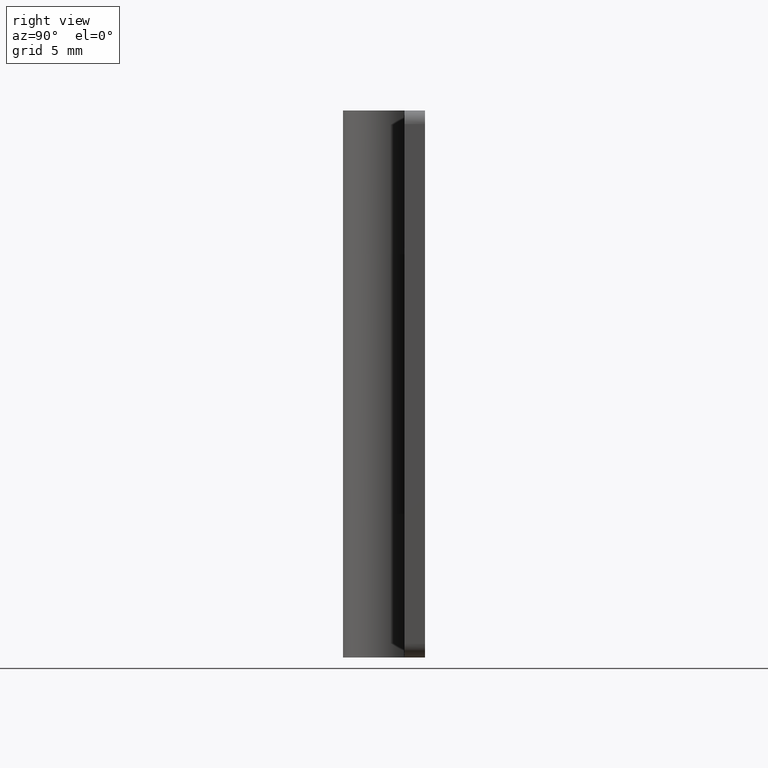
[diagram: clean part render]
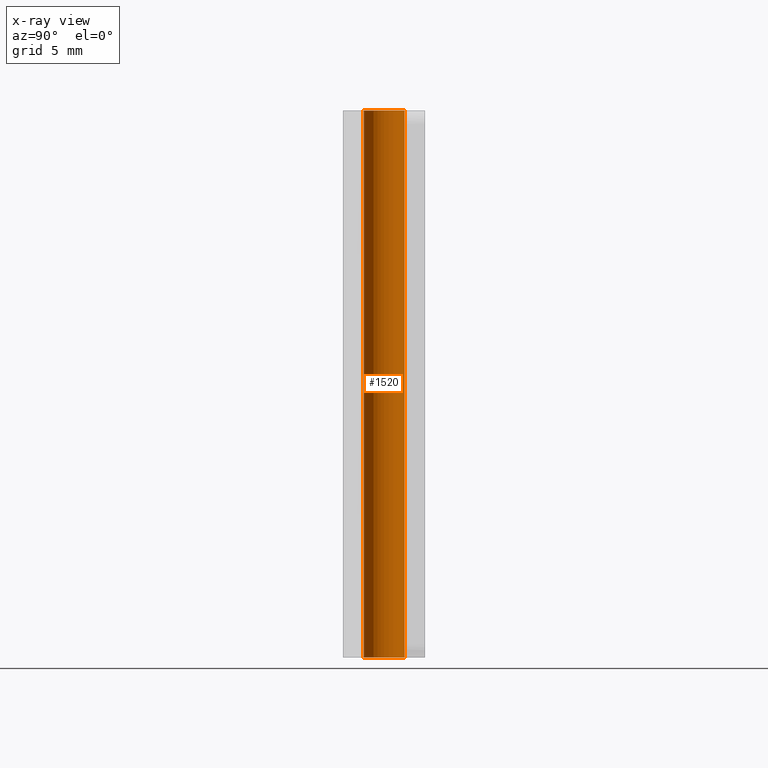
[diagram: x-ray — body ghosted, one internal face saturated and labeled with its STEP entity id]
A machine part, right view, then the same camera in x-ray: the body is ghosted and one INTERNAL B-rep face — a face not visible from any outside direction — is saturated and labeled: STEP entity #1520.
In plain terms, the highlighted face is a freeform B-spline surface patch.
Its self-contained STEP definition (entity closure, byte-faithful):
#1418=CARTESIAN_POINT('',(0.177051351985138,-1.489514289545500,41.000000000000014));
#1419=CARTESIAN_POINT('',(0.134422092956966,-1.494581423172908,41.000000000000014));
#1420=CARTESIAN_POINT('',(0.091572809302285,-1.497202197632800,41.000000000000007));
#1421=CARTESIAN_POINT('',(-1.405629388330515,-1.588775006935085,41.000000000000014));
#1422=CARTESIAN_POINT('',(-1.497202197632800,-0.091572809302285,41.000000000000007));
#1423=CARTESIAN_POINT('',(-1.588775006935085,1.405629388330515,41.000000000000014));
#1424=CARTESIAN_POINT('',(-0.091572809302285,1.497202197632800,41.000000000000007));
#1425=CARTESIAN_POINT('',(0.177051351985138,-1.489514289545500,-1.025000000000006));
#1426=CARTESIAN_POINT('',(0.134422092956966,-1.494581423172908,-1.025000000000006));
#1427=CARTESIAN_POINT('',(0.091572809302285,-1.497202197632800,-1.025000000000006));
#1428=CARTESIAN_POINT('',(-1.405629388330515,-1.588775006935085,-1.025000000000006));
#1429=CARTESIAN_POINT('',(-1.497202197632800,-0.091572809302285,-1.025000000000006));
#1430=CARTESIAN_POINT('',(-1.588775006935085,1.405629388330515,-1.025000000000006));
#1431=CARTESIAN_POINT('',(-0.091572809302285,1.497202197632800,-1.025000000000006));
#1439=(BOUNDED_SURFACE()B_SPLINE_SURFACE(2,1,((#1418,#1425),(#1419,#1426),(#1420,#1427),(#1421,#1428),(#1422,#1429),(#1423,#1430),(#1424,#1431)),.UNSPECIFIED.,.F.,.F.,.U.)B_SPLINE_SURFACE_WITH_KNOTS((3,2,2,3),(2,2),(3.078760800517997,3.141592653589793,4.712388980384690,6.283185307179586),(0.0,42.025000000000013),.UNSPECIFIED.)GEOMETRIC_REPRESENTATION_ITEM()RATIONAL_B_SPLINE_SURFACE(((0.977505800795127,0.977505800795127),(0.988284271247462,0.988284271247462),(1.0,1.0),(0.707106781186548,0.707106781186548),(1.0,1.0),(0.707106781186548,0.707106781186548),(1.0,1.0)))REPRESENTATION_ITEM('')SURFACE());
#1440=CARTESIAN_POINT('',(0.177048581627317,-1.489514618839295,-4.543085E-015));
#1441=VERTEX_POINT('',#1440);
#1442=CARTESIAN_POINT('',(-1.500000000000000,0.0,0.0));
#1443=VERTEX_POINT('',#1442);
#1444=CARTESIAN_POINT('',(0.177048581627317,-1.489514618839296,-4.543085E-015));
#1445=CARTESIAN_POINT('',(0.088834779655407,-1.500000000000000,0.0));
#1446=CARTESIAN_POINT('',(0.0,-1.500000000000000,0.0));
#1447=CARTESIAN_POINT('',(-1.500000000000000,-1.500000000000000,0.0));
#1448=CARTESIAN_POINT('',(-1.500000000000000,0.0,0.0));
#1456=(BOUNDED_CURVE()B_SPLINE_CURVE(2,(#1444,#1445,#1446,#1447,#1448),.UNSPECIFIED.,.F.,.U.)B_SPLINE_CURVE_WITH_KNOTS((3,2,3),(0.229562787845978,0.250000000000000,0.500000000000000),.UNSPECIFIED.)CURVE()GEOMETRIC_REPRESENTATION_ITEM()RATIONAL_B_SPLINE_CURVE((0.956027370289129,0.976056316594540,1.0,0.707106781186548,1.0))REPRESENTATION_ITEM(''));
#1457=EDGE_CURVE('',#1441,#1443,#1456,.T.);
#1458=ORIENTED_EDGE('',*,*,#1457,.F.);
#1459=CARTESIAN_POINT('',(0.177048615914858,-1.489514614763830,40.0));
#1460=VERTEX_POINT('',#1459);
#1461=CARTESIAN_POINT('',(0.177048615914858,-1.489514614763830,40.0));
#1462=CARTESIAN_POINT('',(0.177048581627317,-1.489514618839295,-4.543085E-015));
#1463=QUASI_UNIFORM_CURVE('',1,(#1461,#1462),.UNSPECIFIED.,.F.,.U.);
#1464=EDGE_CURVE('',#1460,#1441,#1463,.T.);
#1465=ORIENTED_EDGE('',*,*,#1464,.F.);
#1466=CARTESIAN_POINT('',(-1.500000000000000,0.0,40.0));
#1467=VERTEX_POINT('',#1466);
#1468=CARTESIAN_POINT('',(0.177048615914858,-1.489514614763830,40.0));
#1469=CARTESIAN_POINT('',(0.088834796980410,-1.500000000000000,40.000000000000007));
#1470=CARTESIAN_POINT('',(0.0,-1.500000000000000,40.0));
#1471=CARTESIAN_POINT('',(-1.500000000000000,-1.500000000000000,39.999999999999993));
#1472=CARTESIAN_POINT('',(-1.500000000000000,0.0,40.0));
#1480=(BOUNDED_CURVE()B_SPLINE_CURVE(2,(#1468,#1469,#1470,#1471,#1472),.UNSPECIFIED.,.F.,.U.)B_SPLINE_CURVE_WITH_KNOTS((3,2,3),(0.229562783955644,0.250000000000000,0.500000000000000),.UNSPECIFIED.)CURVE()GEOMETRIC_REPRESENTATION_ITEM()RATIONAL_B_SPLINE_CURVE((0.956027362663894,0.976056312036731,1.0,0.707106781186548,1.0))REPRESENTATION_ITEM(''));
#1481=EDGE_CURVE('',#1460,#1467,#1480,.T.);
#1482=ORIENTED_EDGE('',*,*,#1481,.T.);
#1483=CARTESIAN_POINT('',(-0.091572809322919,1.497202197631538,40.0));
#1484=VERTEX_POINT('',#1483);
#1485=CARTESIAN_POINT('',(-1.500000000000000,0.0,40.0));
#1486=CARTESIAN_POINT('',(-1.500000000000000,1.411059100319583,39.999999999999993));
#1487=CARTESIAN_POINT('',(-0.091572809322919,1.497202197631539,40.000000000000007));
#1495=(BOUNDED_CURVE()B_SPLINE_CURVE(2,(#1485,#1486,#1487),.UNSPECIFIED.,.F.,.U.)B_SPLINE_CURVE_WITH_KNOTS((3,3),(0.500000000000000,0.739332962237213),.UNSPECIFIED.)CURVE()GEOMETRIC_REPRESENTATION_ITEM()RATIONAL_B_SPLINE_CURVE((1.0,0.719603993288737,0.976072041663010))REPRESENTATION_ITEM(''));
#1496=EDGE_CURVE('',#1467,#1484,#1495,.T.);
#1497=ORIENTED_EDGE('',*,*,#1496,.T.);
#1498=CARTESIAN_POINT('',(-0.091572809322920,1.497202197631538,1.110223E-016));
#1499=VERTEX_POINT('',#1498);
#1500=CARTESIAN_POINT('',(-0.091572809322919,1.497202197631538,40.0));
#1501=CARTESIAN_POINT('',(-0.091572809322920,1.497202197631538,1.110223E-016));
#1502=QUASI_UNIFORM_CURVE('',1,(#1500,#1501),.UNSPECIFIED.,.F.,.U.);
#1503=EDGE_CURVE('',#1484,#1499,#1502,.T.);
#1504=ORIENTED_EDGE('',*,*,#1503,.T.);
#1505=CARTESIAN_POINT('',(-1.500000000000000,0.0,0.0));
#1506=CARTESIAN_POINT('',(-1.500000000000000,1.411059100319583,0.0));
#1507=CARTESIAN_POINT('',(-0.091572809322920,1.497202197631539,1.110223E-016));
#1515=(BOUNDED_CURVE()B_SPLINE_CURVE(2,(#1505,#1506,#1507),.UNSPECIFIED.,.F.,.U.)B_SPLINE_CURVE_WITH_KNOTS((3,3),(0.500000000000000,0.739332962237213),.UNSPECIFIED.)CURVE()GEOMETRIC_REPRESENTATION_ITEM()RATIONAL_B_SPLINE_CURVE((1.0,0.719603993288737,0.976072041663010))REPRESENTATION_ITEM(''));
#1516=EDGE_CURVE('',#1443,#1499,#1515,.T.);
#1517=ORIENTED_EDGE('',*,*,#1516,.F.);
#1518=EDGE_LOOP('',(#1458,#1465,#1482,#1497,#1504,#1517));
#1519=FACE_OUTER_BOUND('',#1518,.T.);
#1520=ADVANCED_FACE('',(#1519),#1439,.T.);